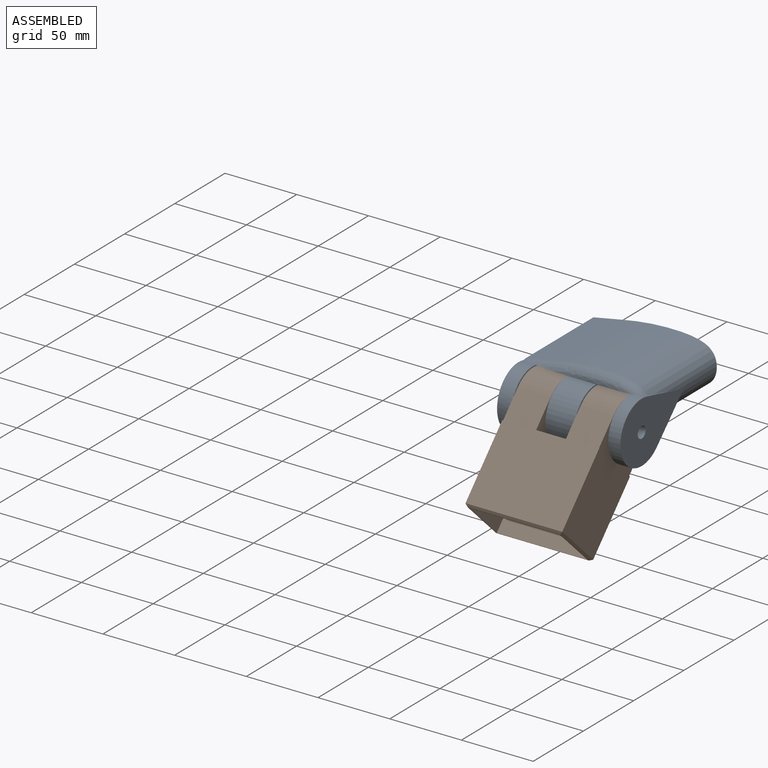
[diagram: assembled view]
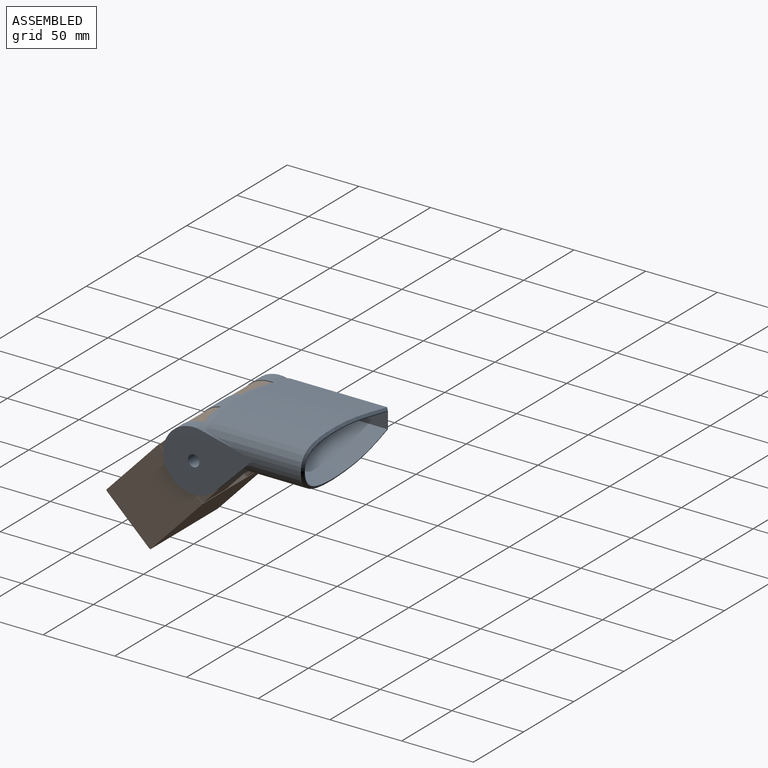
[diagram: assembled view, second angle]
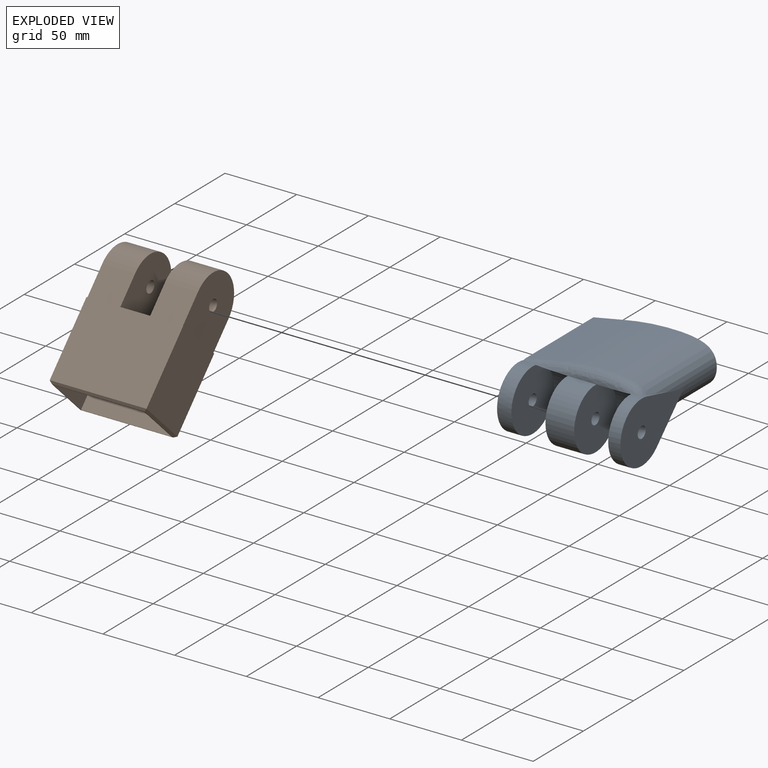
[diagram: exploded view]
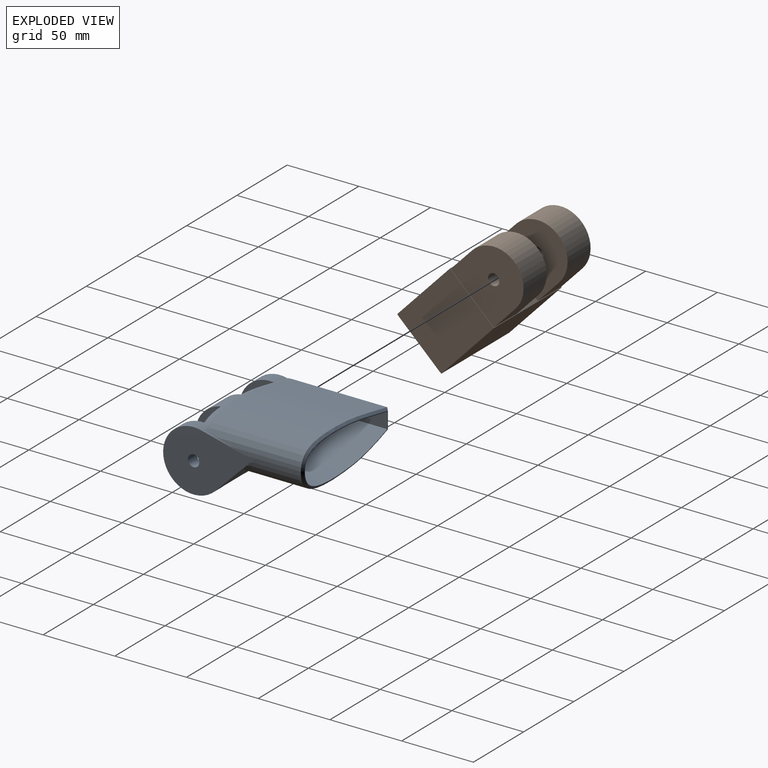
[diagram: exploded view, second angle]
ASSEMBLY  parts=2 mates=2
PART A: 33 faces, bbox 94.4x99.5x51.7 mm
  f0: cylinder r=21.25mm len=42.5mm, axis (-1,0,0), area 743.8mm2, adj f10,f11,f12,f13,f25
  f1: cylinder r=21.25mm len=42.5mm, axis (-1,0,0), area 1684.5mm2, adj f8,f11,f13,f24,f29
  f2: cylinder r=21.25mm len=42.5mm, axis (-1,0,0), area 875.9mm2, adj f6,f11,f13,f14,f28
  f3: plane 83.93x30.11mm, normal (0,1,0), area 78.9mm2, adj f15,f16,f18,f19,f20,f21
  f4: extruded ~84.71x67.2mm, area 10423mm2, adj f5,f7,f9,f10,f11,f13,f19
  f5: plane 67.2x1.63mm, normal (-0.19,0,0.98), area 111.4mm2, adj f4,f6,f14,f18
  f6: plane 96.03x42.53mm, normal (-1,0,0), area 2344.8mm2, adj f2,f5,f7,f11,f14,f20,f31
  f7: plane 38.33x1.3mm, normal (-0.35,0,-0.94), area 52.8mm2, adj f4,f6,f11,f21
  f8: plane 18.61x0.32mm, normal (0,-1,0), area 3.9mm2, adj f1,f13,f26
  f9: plane 3.24x0.79mm, normal (0,0.24,0.97), area 0mm2, adj f4,f11,f12
  f10: plane 33.67x8.39mm, normal (0,0.24,0.97), area 25.1mm2, adj f0,f4,f12,f13
  f11: plane 86.02x26.71mm, normal (0,0.71,-0.71), area 1713.3mm2, adj f0,f1,f2,f4,f6,f7,f9,f12
  f12: plane 62.98x42.5mm, normal (1,0,0), area 1693.1mm2, adj f0,f9,f10,f11,f32
  f13: bspline ~88.31x14.85mm, area 690.3mm2, adj f0,f1,f2,f4,f8,f10,f14,f26
  f14: cylinder r=6.8mm len=2.72mm, axis (-0.98,0,-0.19), area 4.3mm2, adj f2,f5,f6,f13
  f15: extruded ~82.01x46.5mm, area 8415.5mm2, adj f3,f16,f22
  f16: plane 46.5x11.04mm, normal (1,0,0), area 513.4mm2, adj f3,f15,f23
  f17: plane 77.11x23.96mm, normal (0,1,0), area 1239.2mm2, adj f22,f23
  f18: plane 1.91x1.55mm, normal (-0.13,0.71,0.69), area 2.2mm2, adj f3,f5,f19,f20
  f19: bspline ~84.74x32.58mm, area 393.3mm2, adj f3,f4,f18,f21
  f20: plane 14.09x1.5mm, normal (-0.71,0.71,0), area 27.5mm2, adj f3,f6,f18,f21
  f21: plane 1.82x1.53mm, normal (-0.25,0.71,-0.66), area 1.8mm2, adj f3,f7,f19,f20
  f22: bspline ~90.35x28.52mm, area 849.4mm2, adj f15,f17,f23
  f23: plane 11.05x3.51mm, normal (0.71,0.71,0), area 41.4mm2, adj f16,f17,f22
  f24: plane 42.5x42.5mm, normal (1,0,0), area 1368.4mm2, adj f1,f26,f30
  f25: plane 42.5x42.5mm, normal (-1,0,0), area 1368.4mm2, adj f0,f26,f32
  f26: cylinder r=21.25mm len=36.26mm, axis (-1,0,0), area 1166.4mm2, adj f8,f11,f13,f24,f25
  f27: cylinder r=21.25mm len=36.26mm, axis (-1,0,0), area 1143.8mm2, adj f11,f13,f28,f29
  f28: plane 42.5x42.5mm, normal (1,0,0), area 1368.4mm2, adj f2,f27,f31
  f29: plane 42.5x42.5mm, normal (-1,0,0), area 1368.4mm2, adj f1,f27,f30
  f30: cylinder r=4mm len=20mm, axis (1,0,0), area 502.7mm2, adj f24,f29
  f31: cylinder r=4mm len=10mm, axis (1,0,0), area 251.3mm2, adj f6,f28
  f32: cylinder r=4mm len=8.52mm, axis (1,0,0), area 214mm2, adj f12,f25
PART B: 31 faces, bbox 67.5x97.1x42.5 mm
  f0: plane 53.1x42.5mm, normal (-1,0,0), area 2256.8mm2, adj f2,f6,f15,f18
  f1: plane 53.1x42.5mm, normal (1,0,0), area 2256.8mm2, adj f2,f6,f16,f18
  f2: plane 67.5x53.1mm, normal (0,0,1), area 3584.3mm2, adj f0,f1,f14,f18
  f3: plane 63.5x45mm, normal (0,0,1), area 2857.5mm2, adj f4,f7,f8,f11
  f4: plane 45x38.5mm, normal (1,0,0), area 1732.5mm2, adj f3,f5,f8,f10
  f5: plane 63.5x45mm, normal (0,0,-1), area 2857.5mm2, adj f4,f7,f8,f12
  f6: plane 67.5x53.1mm, normal (0,0,-1), area 3584.3mm2, adj f0,f1,f17,f18
  f7: plane 45x38.5mm, normal (-1,0,0), area 1732.5mm2, adj f3,f5,f8,f13
  f8: plane 64.5x39.5mm, normal (0,-1,0), area 103mm2, adj f3,f4,f5,f7,f14,f15,f16,f17
  f9: plane 53.5x28.5mm, normal (0,-1,0), area 1524.8mm2, adj f10,f11,f12,f13
  f10: plane 38.5x5mm, normal (0.71,-0.71,0), area 236.9mm2, adj f4,f9,f11,f12
  f11: plane 63.5x5mm, normal (0,-0.71,0.71), area 413.7mm2, adj f3,f9,f10,f13
  f12: plane 63.5x5mm, normal (0,-0.71,-0.71), area 413.7mm2, adj f5,f9,f10,f13
  f13: plane 38.5x5mm, normal (-0.71,-0.71,0), area 236.9mm2, adj f7,f9,f11,f12
  f14: plane 67.5x1.5mm, normal (0,-0.71,0.71), area 140mm2, adj f2,f8,f15,f16
  f15: plane 42.5x1.5mm, normal (-0.71,-0.71,0), area 87mm2, adj f0,f8,f14,f17
  f16: plane 42.5x1.5mm, normal (0.71,-0.71,0), area 87mm2, adj f1,f8,f14,f17
  f17: plane 67.5x1.5mm, normal (0,-0.71,-0.71), area 140mm2, adj f6,f8,f15,f16
  f18: plane 67.5x42.5mm, normal (0,1,0), area 954.7mm2, adj f0,f1,f2,f6,f21,f22,f23,f24
  f19: cylinder r=4mm len=22.95mm, axis (1,0,0), area 576.8mm2, adj f22,f24
  f20: cylinder r=20.85mm len=41.7mm, axis (1,0,0), area 1503.3mm2, adj f21,f22,f23,f24
  f21: plane 22.95x21.65mm, normal (0,0,-1), area 496.9mm2, adj f18,f20,f22,f24
  f22: plane 42.5x41.7mm, normal (-1,0,0), area 1535.4mm2, adj f18,f19,f20,f21,f23
  f23: plane 22.95x21.65mm, normal (0,0,1), area 496.9mm2, adj f18,f20,f22,f24
  f24: plane 42.5x41.7mm, normal (1,0,0), area 1535.4mm2, adj f18,f19,f20,f21,f23
  f25: cylinder r=4mm len=22.95mm, axis (1,0,0), area 576.8mm2, adj f27,f29
  f26: cylinder r=20.85mm len=41.7mm, axis (1,0,0), area 1503.3mm2, adj f27,f28,f29,f30
  f27: plane 42.5x41.7mm, normal (1,0,0), area 1535.4mm2, adj f18,f25,f26,f28,f30
  f28: plane 22.95x21.65mm, normal (0,0,-1), area 496.9mm2, adj f18,f26,f27,f29
  f29: plane 42.5x41.7mm, normal (-1,0,0), area 1535.4mm2, adj f18,f25,f26,f28,f30
  f30: plane 22.95x21.65mm, normal (0,0,1), area 496.9mm2, adj f18,f26,f27,f29
PLACE A at identity fixed
PLACE B rot(axis=(1,0,0),46.4deg) t=(0,-6.58,19.66)mm
MATE planar B.f19 <-> A.f30  axis (1,0,0) through (75.1,-26.25,2.15)mm
MATE cylindrical B.f19 <-> A.f26  axis (1,0,0) through (75.1,-26.25,2.15)mm
